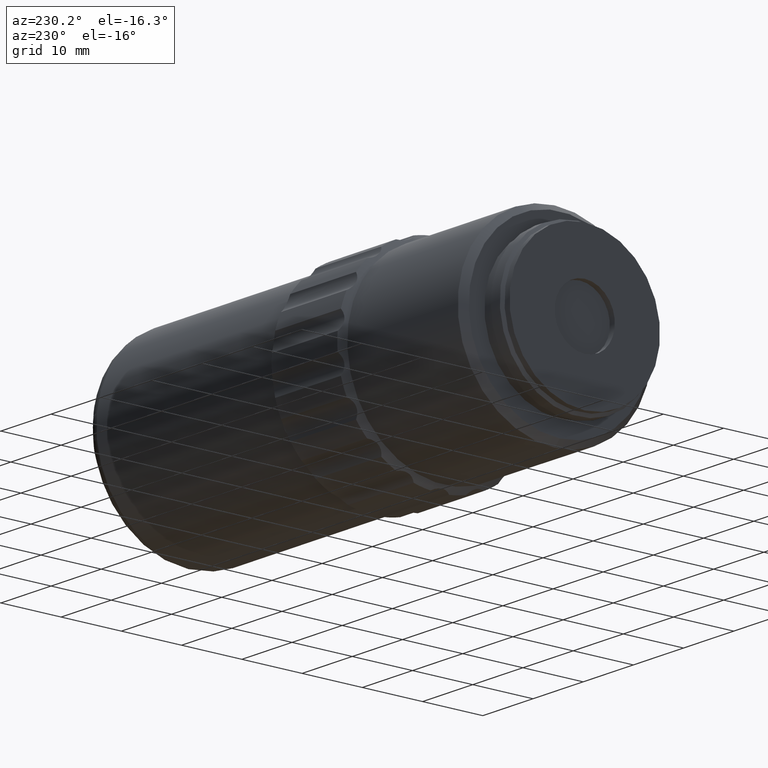
[diagram: clean part render]
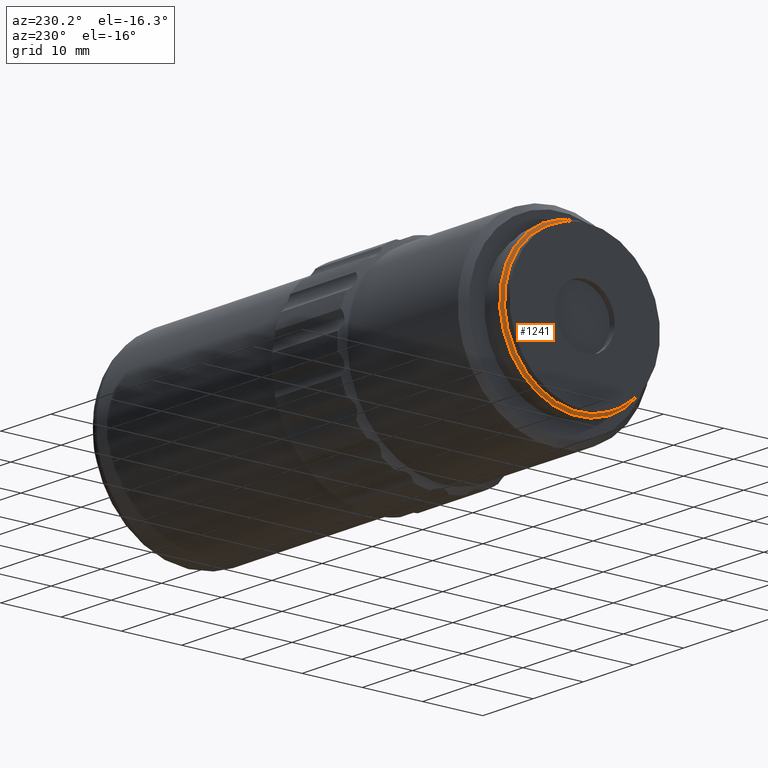
[diagram: same view with one face highlighted and labeled with its STEP entity id]
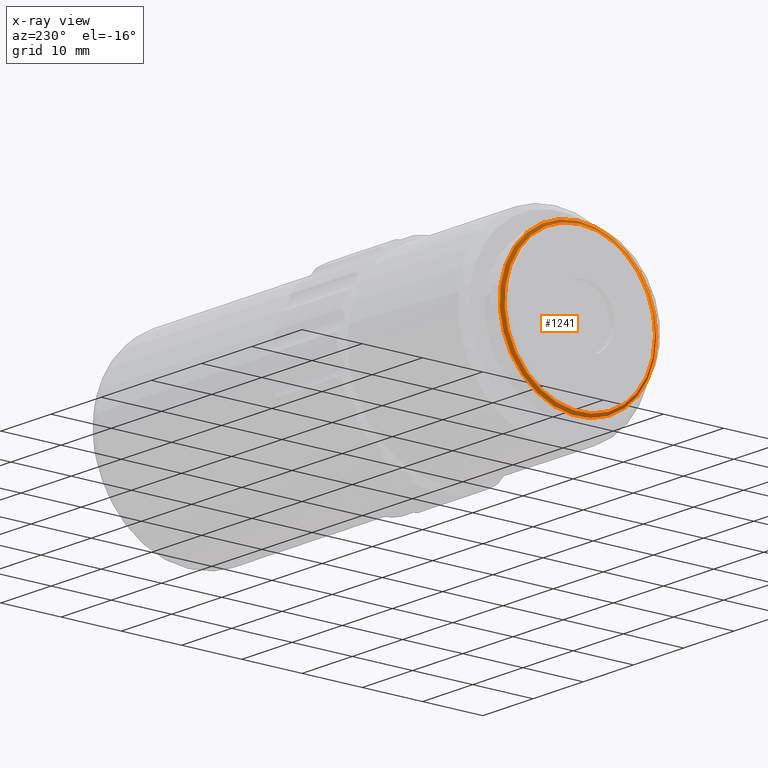
[diagram: x-ray of the same camera — body ghosted, the highlighted face saturated]
A machine part, auxiliary view. The second image highlights one B-rep face of the part: STEP entity #1241.
The next image is the same camera in x-ray: the body ghosted, the highlighted face saturated — about 0% of this face is hidden behind the body in this view.
In plain terms, the highlighted conical surface has half-angle 55 deg.
Its self-contained STEP definition (entity closure, byte-faithful):
#19 = FACE_BOUND ( 'NONE', #1654, .T. ) ;
#42 = EDGE_LOOP ( 'NONE', ( #949 ) ) ;
#101 = DIRECTION ( 'NONE',  ( 1.000000000000000000, 0.000000000000000000, 0.000000000000000000 ) ) ;
#121 = CIRCLE ( 'NONE', #1520, 13.00000000000000178 ) ;
#246 = DIRECTION ( 'NONE',  ( 0.000000000000000000, -1.000000000000000000, 0.000000000000000000 ) ) ;
#330 = AXIS2_PLACEMENT_3D ( 'NONE', #1846, #2008, #698 ) ;
#552 = FACE_OUTER_BOUND ( 'NONE', #42, .T. ) ;
#553 = VERTEX_POINT ( 'NONE', #1865 ) ;
#610 = DIRECTION ( 'NONE',  ( 0.000000000000000000, 0.000000000000000000, 1.000000000000000000 ) ) ;
#698 = DIRECTION ( 'NONE',  ( 0.000000000000000000, 0.000000000000000000, -1.000000000000000000 ) ) ;
#723 = EDGE_CURVE ( 'NONE', #729, #729, #1234, .T. ) ;
#729 = VERTEX_POINT ( 'NONE', #1236 ) ;
#924 = DIRECTION ( 'NONE',  ( 1.000000000000000000, -0.000000000000000000, -0.000000000000000000 ) ) ;
#949 = ORIENTED_EDGE ( 'NONE', *, *, #1833, .F. ) ;
#985 = CONICAL_SURFACE ( 'NONE', #330, 12.99999999999999822, 0.9599310885968810325 ) ;
#1177 = ORIENTED_EDGE ( 'NONE', *, *, #723, .T. ) ;
#1234 = CIRCLE ( 'NONE', #1849, 12.49999999999999645 ) ;
#1236 = CARTESIAN_POINT ( 'NONE',  ( -8.553141965121202617, 33.52096200000000437, 0.000000000000000000 ) ) ;
#1241 = ADVANCED_FACE ( 'NONE', ( #19, #552 ), #985, .T. ) ;
#1397 = CARTESIAN_POINT ( 'NONE',  ( -8.203038196016342098, 46.02096199999999726, 0.000000000000000000 ) ) ;
#1422 = CARTESIAN_POINT ( 'NONE',  ( -8.553141965121202617, 46.02096199999999726, 0.000000000000000000 ) ) ;
#1520 = AXIS2_PLACEMENT_3D ( 'NONE', #1397, #924, #610 ) ;
#1654 = EDGE_LOOP ( 'NONE', ( #1177 ) ) ;
#1833 = EDGE_CURVE ( 'NONE', #553, #553, #121, .T. ) ;
#1846 = CARTESIAN_POINT ( 'NONE',  ( -8.203038196016347428, 46.02096199999999726, 0.000000000000000000 ) ) ;
#1849 = AXIS2_PLACEMENT_3D ( 'NONE', #1422, #101, #246 ) ;
#1865 = CARTESIAN_POINT ( 'NONE',  ( -8.203038196016342098, 46.02096199999999726, 13.00000000000000178 ) ) ;
#2008 = DIRECTION ( 'NONE',  ( 1.000000000000000000, -0.000000000000000000, 0.000000000000000000 ) ) ;